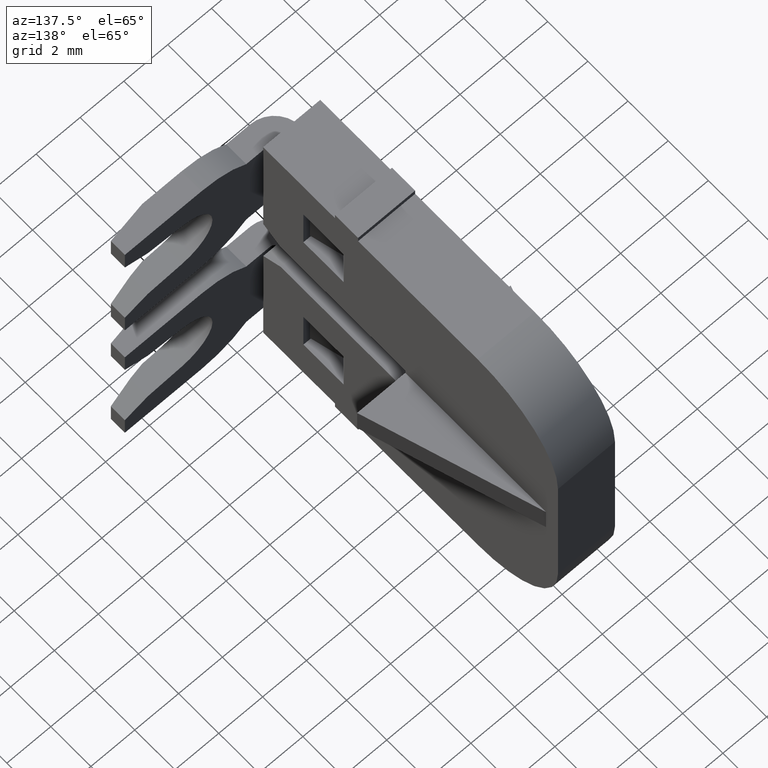
[diagram: clean part render]
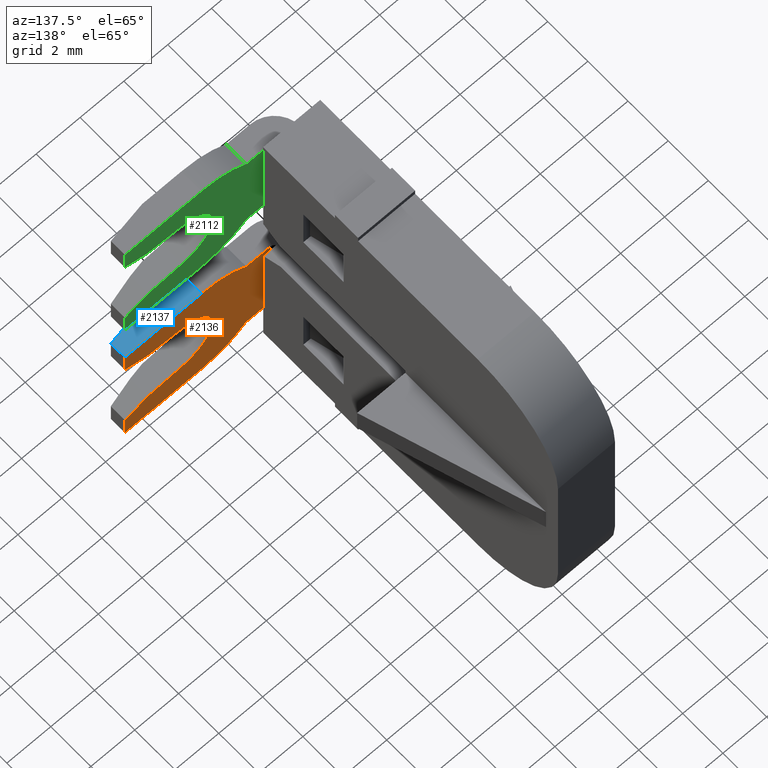
[diagram: same view with three faces highlighted in distinct colors, each labeled with its STEP entity id]
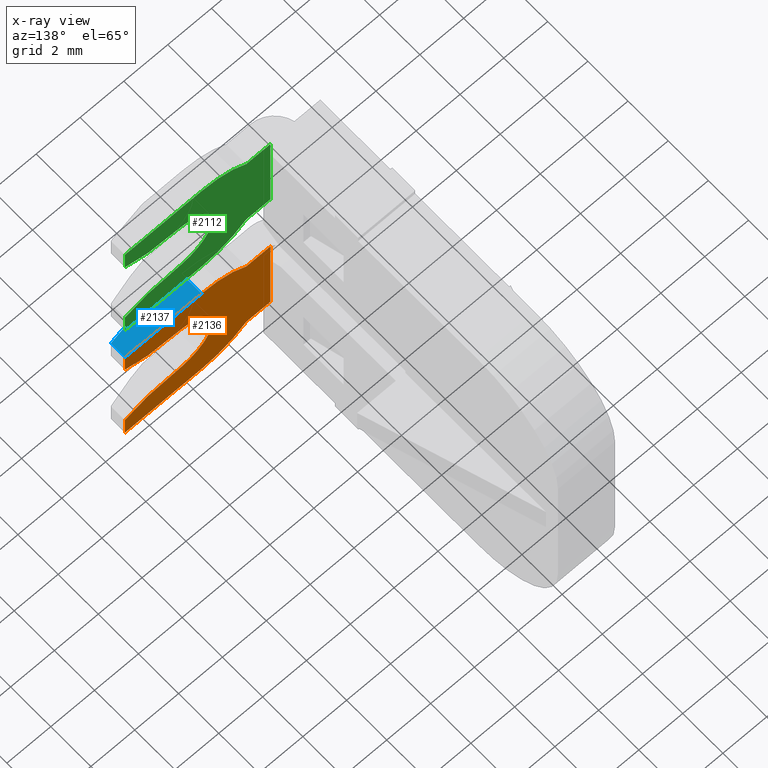
[diagram: x-ray of the same camera — body ghosted, the three highlighted faces saturated]
A machine part, auxiliary view with three faces highlighted in distinct colors.
The next image is the same camera in x-ray (body ghosted, the three faces saturated) — at least one of them is partly hidden behind the body in this view.
Their STEP definitions:

[orange] entity #2136 — the highlighted planar face has unit normal (0, -1, -0).
#222 = CARTESIAN_POINT ( 'NONE',  ( 1477.581277334164000, 1079.959529724810000, -1.099999999999976100 ) ) ;
#227 = CARTESIAN_POINT ( 'NONE',  ( 1474.445209356664000, 1079.959529724810000, -6.299999998087770300 ) ) ;
#237 = CARTESIAN_POINT ( 'NONE',  ( 1481.081277336664000, 1079.959529724810000, -2.100000000000000100 ) ) ;
#245 = CARTESIAN_POINT ( 'NONE',  ( 1481.081277336664000, 1079.959529724810000, -7.100000000000120400 ) ) ;
#256 = CARTESIAN_POINT ( 'NONE',  ( 1474.445209356664000, 1079.959529724810000, -1.899999998087710000 ) ) ;
#257 = CARTESIAN_POINT ( 'NONE',  ( 1478.465335063176100, 1079.959529724810000, -5.595434553790839900 ) ) ;
#261 = CARTESIAN_POINT ( 'NONE',  ( 1480.031484648070100, 1079.959529724810000, -5.717906709201569600 ) ) ;
#264 = CARTESIAN_POINT ( 'NONE',  ( 1475.541669526664000, 1079.959529724810000, -6.299999998087770300 ) ) ;
#268 = CARTESIAN_POINT ( 'NONE',  ( 1481.081277336664000, 1079.959529724810000, -6.100000000000120400 ) ) ;
#301 = CARTESIAN_POINT ( 'NONE',  ( 1480.031484648070100, 1079.959529724810000, -2.482093290798445200 ) ) ;
#306 = CARTESIAN_POINT ( 'NONE',  ( 1481.081277336664000, 1079.959529724810000, -1.100000000000000100 ) ) ;
#322 = CARTESIAN_POINT ( 'NONE',  ( 1475.541669528726100, 1079.959529724810000, -1.900000000000025000 ) ) ;
#323 = CARTESIAN_POINT ( 'NONE',  ( 1477.581277334164000, 1079.959529724810000, -7.100000000000090200 ) ) ;
#324 = CARTESIAN_POINT ( 'NONE',  ( 1478.465335063176100, 1079.959529724810000, -2.604565446209139900 ) ) ;
#424 = VECTOR ( 'NONE', #1458, 1000.000000000000000 ) ;
#443 = VECTOR ( 'NONE', #1485, 1000.000000000000100 ) ;
#459 = VECTOR ( 'NONE', #1405, 1000.000000000000000 ) ;
#464 = CIRCLE ( 'NONE', #474, 3.000000000000000000 ) ;
#474 = AXIS2_PLACEMENT_3D ( 'NONE', #1460, #1488, #1465 ) ;
#479 = VECTOR ( 'NONE', #1487, 1000.000000000000100 ) ;
#490 = VECTOR ( 'NONE', #1587, 1000.000000000000000 ) ;
#494 = AXIS2_PLACEMENT_3D ( 'NONE', #1491, #1525, #1526 ) ;
#509 = AXIS2_PLACEMENT_3D ( 'NONE', #1542, #1557, #1530 ) ;
#517 = CIRCLE ( 'NONE', #494, 3.000000000000000000 ) ;
#524 = CIRCLE ( 'NONE', #509, 1.500000000000000000 ) ;
#528 = VECTOR ( 'NONE', #1584, 1000.000000000000000 ) ;
#533 = VECTOR ( 'NONE', #1627, 1000.000000000000000 ) ;
#542 = VECTOR ( 'NONE', #1700, 1000.000000000000100 ) ;
#558 = VECTOR ( 'NONE', #1688, 1000.000000000000000 ) ;
#591 = VECTOR ( 'NONE', #1741, 1000.000000000000000 ) ;
#602 = VECTOR ( 'NONE', #1729, 1000.000000000000000 ) ;
#690 = AXIS2_PLACEMENT_3D ( 'NONE', #1052, #1072, #1058 ) ;
#1052 = CARTESIAN_POINT ( 'NONE',  ( 1474.245209356664000, 1079.959529724810000, -1.899999998087710000 ) ) ;
#1055 = PLANE ( 'NONE',  #690 ) ;
#1058 = DIRECTION ( 'NONE',  ( -3.003463711734375200E-015, 1.611929227616649900E-016, -1.000000000000000000 ) ) ;
#1072 = DIRECTION ( 'NONE',  ( 5.551115123125738900E-017, -1.000000000000000000, -1.611929227616651700E-016 ) ) ;
#1089 = FACE_OUTER_BOUND ( 'NONE', #2730, .T. ) ;
#1405 = DIRECTION ( 'NONE',  ( -1.000000000000000000, -2.775557561562949900E-017, 6.502744763859970100E-015 ) ) ;
#1407 = LINE ( 'NONE', #1445, #479 ) ;
#1412 = LINE ( 'NONE', #1446, #443 ) ;
#1425 = CARTESIAN_POINT ( 'NONE',  ( 1474.245209356664000, 1079.959529724810000, -6.299999998087770300 ) ) ;
#1435 = LINE ( 'NONE', #1425, #459 ) ;
#1445 = CARTESIAN_POINT ( 'NONE',  ( 1481.081277336664000, 1079.959529724810000, -5.800000000000110000 ) ) ;
#1446 = CARTESIAN_POINT ( 'NONE',  ( 1481.081277336664000, 1079.959529724810000, -2.399999999999999900 ) ) ;
#1456 = LINE ( 'NONE', #1457, #424 ) ;
#1457 = CARTESIAN_POINT ( 'NONE',  ( 1477.581277334164000, 1079.959529724810000, -7.100000000000090200 ) ) ;
#1458 = DIRECTION ( 'NONE',  ( 1.000000000000000000, 2.775557561562874700E-017, -2.042027254913429900E-015 ) ) ;
#1460 = CARTESIAN_POINT ( 'NONE',  ( 1477.581277334164000, 1079.959529724810000, -4.100000000000000500 ) ) ;
#1465 = DIRECTION ( 'NONE',  ( 0.0000000000000000000, 0.0000000000000000000, 1.000000000000000000 ) ) ;
#1485 = DIRECTION ( 'NONE',  ( 0.9969563691939027400, 1.510425331878288300E-017, 0.07796151565811471100 ) ) ;
#1487 = DIRECTION ( 'NONE',  ( -0.9969563691939025100, -4.023794246250532000E-017, 0.07796151565811894300 ) ) ;
#1488 = DIRECTION ( 'NONE',  ( 5.551115123125689600E-017, -1.000000000000000000, -2.891205793293835200E-016 ) ) ;
#1491 = CARTESIAN_POINT ( 'NONE',  ( 1477.581277334164000, 1079.959529724810000, -4.100000000000000500 ) ) ;
#1525 = DIRECTION ( 'NONE',  ( 5.551115123125689600E-017, -1.000000000000000000, -2.891205793293830300E-016 ) ) ;
#1526 = DIRECTION ( 'NONE',  ( 0.0000000000000000000, 0.0000000000000000000, 1.000000000000000000 ) ) ;
#1530 = DIRECTION ( 'NONE',  ( 0.0000000000000000000, 0.0000000000000000000, 1.000000000000000000 ) ) ;
#1542 = CARTESIAN_POINT ( 'NONE',  ( 1478.582277336664000, 1079.959529724810000, -4.100000000000000500 ) ) ;
#1557 = DIRECTION ( 'NONE',  ( -5.551115123125779600E-017, 1.000000000000000000, -8.480695841261440800E-029 ) ) ;
#1561 = LINE ( 'NONE', #1568, #490 ) ;
#1568 = CARTESIAN_POINT ( 'NONE',  ( 1475.245209356664000, 1079.959529724810000, -1.899999998087670100 ) ) ;
#1584 = DIRECTION ( 'NONE',  ( 2.996938929019320400E-015, -1.611929227616649900E-016, 1.000000000000000000 ) ) ;
#1587 = DIRECTION ( 'NONE',  ( 1.000000000000000000, 2.775557561562935100E-017, -5.635383025871561100E-015 ) ) ;
#1594 = CARTESIAN_POINT ( 'NONE',  ( 1481.081277336664000, 1079.959529724810000, -1.100000000000000100 ) ) ;
#1604 = LINE ( 'NONE', #1626, #528 ) ;
#1625 = LINE ( 'NONE', #1594, #533 ) ;
#1626 = CARTESIAN_POINT ( 'NONE',  ( 1474.445209356664000, 1079.959529724810000, -6.299999998087770300 ) ) ;
#1627 = DIRECTION ( 'NONE',  ( -1.000000000000000000, -2.775557561562889800E-017, 2.785480172658120500E-015 ) ) ;
#1684 = LINE ( 'NONE', #1705, #558 ) ;
#1687 = LINE ( 'NONE', #1694, #542 ) ;
#1688 = DIRECTION ( 'NONE',  ( 2.996938929019315300E-015, -1.611929227616649900E-016, 1.000000000000000000 ) ) ;
#1694 = CARTESIAN_POINT ( 'NONE',  ( 1480.031484648070100, 1079.959529724810000, -2.482093290798445200 ) ) ;
#1700 = DIRECTION ( 'NONE',  ( 0.9396926207859093200, -2.904951695435646100E-017, 0.3420201433256661000 ) ) ;
#1705 = CARTESIAN_POINT ( 'NONE',  ( 1481.081277336664000, 1079.959529724810000, -7.100000000000120400 ) ) ;
#1719 = CARTESIAN_POINT ( 'NONE',  ( 1481.081277336664000, 1079.959529724810000, -2.399999999999999900 ) ) ;
#1729 = DIRECTION ( 'NONE',  ( 2.996938929019315300E-015, -1.611929227616649900E-016, 1.000000000000000000 ) ) ;
#1730 = LINE ( 'NONE', #1719, #602 ) ;
#1740 = CARTESIAN_POINT ( 'NONE',  ( 1481.081277336664000, 1079.959529724810000, -6.100000000000120400 ) ) ;
#1741 = DIRECTION ( 'NONE',  ( -0.9396926207859069800, -8.121293613769998600E-017, 0.3420201433256724900 ) ) ;
#1745 = LINE ( 'NONE', #1740, #591 ) ;
#1932 = EDGE_CURVE ( 'NONE', #2884, #2865, #1435, .T. ) ;
#1936 = EDGE_CURVE ( 'NONE', #2871, #2868, #1407, .T. ) ;
#1938 = EDGE_CURVE ( 'NONE', #2893, #2955, #1412, .T. ) ;
#1943 = EDGE_CURVE ( 'NONE', #2882, #2908, #464, .T. ) ;
#1947 = EDGE_CURVE ( 'NONE', #2912, #2856, #1456, .T. ) ;
#1957 = EDGE_CURVE ( 'NONE', #2884, #2912, #517, .T. ) ;
#1966 = EDGE_CURVE ( 'NONE', #2868, #2893, #524, .T. ) ;
#1983 = EDGE_CURVE ( 'NONE', #2863, #2908, #1561, .T. ) ;
#1986 = EDGE_CURVE ( 'NONE', #2865, #2863, #1604, .T. ) ;
#1994 = EDGE_CURVE ( 'NONE', #2968, #2882, #1625, .T. ) ;
#2024 = EDGE_CURVE ( 'NONE', #2856, #2883, #1684, .T. ) ;
#2026 = EDGE_CURVE ( 'NONE', #2955, #2891, #1687, .T. ) ;
#2038 = EDGE_CURVE ( 'NONE', #2891, #2968, #1730, .T. ) ;
#2039 = EDGE_CURVE ( 'NONE', #2883, #2871, #1745, .T. ) ;
#2136 = ADVANCED_FACE ( 'NONE', ( #1089 ), #1055, .F. ) ;
#2402 = ORIENTED_EDGE ( 'NONE', *, *, #1957, .F. ) ;
#2403 = ORIENTED_EDGE ( 'NONE', *, *, #2038, .F. ) ;
#2406 = ORIENTED_EDGE ( 'NONE', *, *, #1966, .F. ) ;
#2409 = ORIENTED_EDGE ( 'NONE', *, *, #2039, .F. ) ;
#2411 = ORIENTED_EDGE ( 'NONE', *, *, #1994, .F. ) ;
#2426 = ORIENTED_EDGE ( 'NONE', *, *, #1983, .T. ) ;
#2428 = ORIENTED_EDGE ( 'NONE', *, *, #1936, .F. ) ;
#2429 = ORIENTED_EDGE ( 'NONE', *, *, #1932, .T. ) ;
#2432 = ORIENTED_EDGE ( 'NONE', *, *, #1986, .T. ) ;
#2435 = ORIENTED_EDGE ( 'NONE', *, *, #1943, .F. ) ;
#2437 = ORIENTED_EDGE ( 'NONE', *, *, #2026, .F. ) ;
#2446 = ORIENTED_EDGE ( 'NONE', *, *, #1938, .F. ) ;
#2450 = ORIENTED_EDGE ( 'NONE', *, *, #1947, .F. ) ;
#2456 = ORIENTED_EDGE ( 'NONE', *, *, #2024, .F. ) ;
#2730 = EDGE_LOOP ( 'NONE', ( #2446, #2406, #2428, #2409, #2456, #2450, #2402, #2429, #2432, #2426, #2435, #2411, #2403, #2437 ) ) ;
#2856 = VERTEX_POINT ( 'NONE', #245 ) ;
#2863 = VERTEX_POINT ( 'NONE', #256 ) ;
#2865 = VERTEX_POINT ( 'NONE', #227 ) ;
#2868 = VERTEX_POINT ( 'NONE', #257 ) ;
#2871 = VERTEX_POINT ( 'NONE', #261 ) ;
#2882 = VERTEX_POINT ( 'NONE', #222 ) ;
#2883 = VERTEX_POINT ( 'NONE', #268 ) ;
#2884 = VERTEX_POINT ( 'NONE', #264 ) ;
#2891 = VERTEX_POINT ( 'NONE', #237 ) ;
#2893 = VERTEX_POINT ( 'NONE', #324 ) ;
#2908 = VERTEX_POINT ( 'NONE', #322 ) ;
#2912 = VERTEX_POINT ( 'NONE', #323 ) ;
#2955 = VERTEX_POINT ( 'NONE', #301 ) ;
#2968 = VERTEX_POINT ( 'NONE', #306 ) ;

[blue] entity #2137 — the highlighted planar face has unit normal (0, 0, 1).
#222 = CARTESIAN_POINT ( 'NONE',  ( 1477.581277334164000, 1079.959529724810000, -1.099999999999976100 ) ) ;
#235 = CARTESIAN_POINT ( 'NONE',  ( 1477.581277334164000, 1078.959529724810000, -1.099999999999976100 ) ) ;
#275 = CARTESIAN_POINT ( 'NONE',  ( 1481.081277336664000, 1079.259529724809900, -1.100000000000000100 ) ) ;
#306 = CARTESIAN_POINT ( 'NONE',  ( 1481.081277336664000, 1079.959529724810000, -1.100000000000000100 ) ) ;
#308 = CARTESIAN_POINT ( 'NONE',  ( 1479.379892790780100, 1078.959529724810000, -1.100000000000000100 ) ) ;
#444 = VECTOR ( 'NONE', #1475, 1000.000000000000000 ) ;
#461 = VECTOR ( 'NONE', #1471, 1000.000000000000000 ) ;
#475 = VECTOR ( 'NONE', #1449, 1000.000000000000000 ) ;
#533 = VECTOR ( 'NONE', #1627, 1000.000000000000000 ) ;
#561 = VECTOR ( 'NONE', #1686, 1000.000000000000000 ) ;
#673 = AXIS2_PLACEMENT_3D ( 'NONE', #1054, #1097, #1079 ) ;
#1047 = PLANE ( 'NONE',  #673 ) ;
#1054 = CARTESIAN_POINT ( 'NONE',  ( 1481.081277336664000, 1078.959529724810000, -1.100000000000000100 ) ) ;
#1067 = FACE_OUTER_BOUND ( 'NONE', #2708, .T. ) ;
#1079 = DIRECTION ( 'NONE',  ( 1.611929227617499900E-016, 1.000000000000000000, -8.545782123503740600E-029 ) ) ;
#1097 = DIRECTION ( 'NONE',  ( 2.785480172658120500E-015, 8.500882154471174300E-029, 1.000000000000000000 ) ) ;
#1447 = LINE ( 'NONE', #1481, #461 ) ;
#1448 = LINE ( 'NONE', #1480, #475 ) ;
#1449 = DIRECTION ( 'NONE',  ( -5.551115123125729700E-017, 1.000000000000000000, 1.887053881210179800E-016 ) ) ;
#1471 = DIRECTION ( 'NONE',  ( -1.000000000000000000, -2.775557561562889800E-017, 2.785480172658120500E-015 ) ) ;
#1475 = DIRECTION ( 'NONE',  ( -0.9848077530122082400, -0.1736481776669295300, 2.743162469895515900E-015 ) ) ;
#1477 = LINE ( 'NONE', #1479, #444 ) ;
#1479 = CARTESIAN_POINT ( 'NONE',  ( 1481.029974315165900, 1079.250483617930100, -1.100000000000000100 ) ) ;
#1480 = CARTESIAN_POINT ( 'NONE',  ( 1477.581277334164000, 1078.959529724810000, -1.099999999999976100 ) ) ;
#1481 = CARTESIAN_POINT ( 'NONE',  ( 1481.081277336664000, 1078.959529724810000, -1.100000000000000100 ) ) ;
#1594 = CARTESIAN_POINT ( 'NONE',  ( 1481.081277336664000, 1079.959529724810000, -1.100000000000000100 ) ) ;
#1625 = LINE ( 'NONE', #1594, #533 ) ;
#1627 = DIRECTION ( 'NONE',  ( -1.000000000000000000, -2.775557561562889800E-017, 2.785480172658120500E-015 ) ) ;
#1683 = CARTESIAN_POINT ( 'NONE',  ( 1481.081277336664000, 1078.959529724810000, -1.100000000000000100 ) ) ;
#1686 = DIRECTION ( 'NONE',  ( -5.551115123125729700E-017, 1.000000000000000000, 1.887053881210179800E-016 ) ) ;
#1689 = LINE ( 'NONE', #1683, #561 ) ;
#1939 = EDGE_CURVE ( 'NONE', #2905, #2922, #1477, .T. ) ;
#1940 = EDGE_CURVE ( 'NONE', #2922, #2890, #1447, .T. ) ;
#1944 = EDGE_CURVE ( 'NONE', #2890, #2882, #1448, .T. ) ;
#1994 = EDGE_CURVE ( 'NONE', #2968, #2882, #1625, .T. ) ;
#2023 = EDGE_CURVE ( 'NONE', #2905, #2968, #1689, .T. ) ;
#2137 = ADVANCED_FACE ( 'NONE', ( #1067 ), #1047, .T. ) ;
#2335 = ORIENTED_EDGE ( 'NONE', *, *, #1940, .F. ) ;
#2339 = ORIENTED_EDGE ( 'NONE', *, *, #2023, .T. ) ;
#2368 = ORIENTED_EDGE ( 'NONE', *, *, #1944, .F. ) ;
#2373 = ORIENTED_EDGE ( 'NONE', *, *, #1939, .F. ) ;
#2382 = ORIENTED_EDGE ( 'NONE', *, *, #1994, .T. ) ;
#2708 = EDGE_LOOP ( 'NONE', ( #2373, #2339, #2382, #2368, #2335 ) ) ;
#2882 = VERTEX_POINT ( 'NONE', #222 ) ;
#2890 = VERTEX_POINT ( 'NONE', #235 ) ;
#2905 = VERTEX_POINT ( 'NONE', #275 ) ;
#2922 = VERTEX_POINT ( 'NONE', #308 ) ;
#2968 = VERTEX_POINT ( 'NONE', #306 ) ;

[green] entity #2112 — the highlighted planar face has unit normal (0, -1, 0).
#255 = CARTESIAN_POINT ( 'NONE',  ( 1481.081277336664000, 1079.959529724810000, 1.049999999999945900 ) ) ;
#265 = CARTESIAN_POINT ( 'NONE',  ( 1478.465335063177900, 1079.959529724810000, 2.554565446209100100 ) ) ;
#273 = CARTESIAN_POINT ( 'NONE',  ( 1475.541669526664000, 1079.959529724810000, 6.249999998087740300 ) ) ;
#279 = CARTESIAN_POINT ( 'NONE',  ( 1478.465335063177900, 1079.959529724810000, 5.545434553790800100 ) ) ;
#284 = CARTESIAN_POINT ( 'NONE',  ( 1481.081277336664000, 1079.959529724810000, 7.049999999999999800 ) ) ;
#290 = CARTESIAN_POINT ( 'NONE',  ( 1480.031484648070100, 1079.959529724810000, 5.667906709201499600 ) ) ;
#293 = CARTESIAN_POINT ( 'NONE',  ( 1477.581277334164000, 1079.959529724810000, 1.049999999999945900 ) ) ;
#297 = CARTESIAN_POINT ( 'NONE',  ( 1475.541669528726100, 1079.959529724810000, 1.850000000000000100 ) ) ;
#302 = CARTESIAN_POINT ( 'NONE',  ( 1474.445209356664000, 1079.959529724810000, 6.249999998087740300 ) ) ;
#304 = CARTESIAN_POINT ( 'NONE',  ( 1474.445209356664000, 1079.959529724810000, 1.849999998087695100 ) ) ;
#307 = CARTESIAN_POINT ( 'NONE',  ( 1477.581277334164000, 1079.959529724810000, 7.049999999999999800 ) ) ;
#309 = CARTESIAN_POINT ( 'NONE',  ( 1480.031484648070100, 1079.959529724810000, 2.432093290798395200 ) ) ;
#312 = CARTESIAN_POINT ( 'NONE',  ( 1481.081277336664000, 1079.959529724810000, 2.049999999999940300 ) ) ;
#329 = CARTESIAN_POINT ( 'NONE',  ( 1481.081277336664000, 1079.959529724810000, 6.049999999999999800 ) ) ;
#531 = VECTOR ( 'NONE', #1663, 1000.000000000000000 ) ;
#543 = AXIS2_PLACEMENT_3D ( 'NONE', #1704, #1674, #1718 ) ;
#548 = CIRCLE ( 'NONE', #543, 3.000000000000000000 ) ;
#556 = VECTOR ( 'NONE', #1712, 1000.000000000000000 ) ;
#562 = VECTOR ( 'NONE', #1692, 1000.000000000000000 ) ;
#571 = VECTOR ( 'NONE', #1629, 1000.000000000000000 ) ;
#575 = VECTOR ( 'NONE', #1701, 1000.000000000000100 ) ;
#578 = VECTOR ( 'NONE', #1665, 1000.000000000000000 ) ;
#583 = CIRCLE ( 'NONE', #584, 1.500000000000000000 ) ;
#584 = AXIS2_PLACEMENT_3D ( 'NONE', #1758, #1728, #1750 ) ;
#588 = VECTOR ( 'NONE', #1666, 999.9999999999998900 ) ;
#599 = VECTOR ( 'NONE', #1773, 1000.000000000000000 ) ;
#601 = VECTOR ( 'NONE', #1792, 1000.000000000000100 ) ;
#611 = VECTOR ( 'NONE', #1840, 1000.000000000000000 ) ;
#614 = CIRCLE ( 'NONE', #615, 3.000000000000000000 ) ;
#615 = AXIS2_PLACEMENT_3D ( 'NONE', #1854, #1830, #1828 ) ;
#617 = VECTOR ( 'NONE', #1855, 1000.000000000000000 ) ;
#644 = AXIS2_PLACEMENT_3D ( 'NONE', #908, #906, #930 ) ;
#901 = FACE_OUTER_BOUND ( 'NONE', #2750, .T. ) ;
#906 = DIRECTION ( 'NONE',  ( 5.551115123125839400E-017, -1.000000000000000000, 1.611929227617498000E-016 ) ) ;
#908 = CARTESIAN_POINT ( 'NONE',  ( 1474.245209356664000, 1079.959529724810000, 1.849999998087695100 ) ) ;
#918 = PLANE ( 'NONE',  #644 ) ;
#930 = DIRECTION ( 'NONE',  ( 3.497202527569245500E-015, 1.611929227617499900E-016, 1.000000000000000000 ) ) ;
#1582 = LINE ( 'NONE', #1656, #578 ) ;
#1591 = LINE ( 'NONE', #1592, #531 ) ;
#1592 = CARTESIAN_POINT ( 'NONE',  ( 1481.081277336664000, 1079.959529724810000, 6.049999999999999800 ) ) ;
#1593 = LINE ( 'NONE', #1639, #571 ) ;
#1629 = DIRECTION ( 'NONE',  ( -3.503727310284305400E-015, -1.611929227617499900E-016, -1.000000000000000000 ) ) ;
#1631 = CARTESIAN_POINT ( 'NONE',  ( 1481.081277336664000, 1079.959529724810000, 2.349999999999945000 ) ) ;
#1635 = LINE ( 'NONE', #1660, #575 ) ;
#1639 = CARTESIAN_POINT ( 'NONE',  ( 1481.081277336664000, 1079.959529724810000, 2.349999999999945000 ) ) ;
#1656 = CARTESIAN_POINT ( 'NONE',  ( 1474.445209356664000, 1079.959529724810000, 6.249999998087740300 ) ) ;
#1660 = CARTESIAN_POINT ( 'NONE',  ( 1481.081277336664000, 1079.959529724810000, 5.750000000000000000 ) ) ;
#1663 = DIRECTION ( 'NONE',  ( -0.9396926207859092100, -8.121293613772910000E-017, -0.3420201433256665500 ) ) ;
#1664 = LINE ( 'NONE', #1631, #588 ) ;
#1665 = DIRECTION ( 'NONE',  ( -3.503727310284300300E-015, -1.611929227617499900E-016, -1.000000000000000000 ) ) ;
#1666 = DIRECTION ( 'NONE',  ( 0.9969563691939024000, 1.510425331877623900E-017, -0.07796151565812124700 ) ) ;
#1674 = DIRECTION ( 'NONE',  ( -5.551115123125880100E-017, 1.000000000000000000, -2.891205793294675400E-016 ) ) ;
#1676 = LINE ( 'NONE', #1716, #562 ) ;
#1692 = DIRECTION ( 'NONE',  ( 1.000000000000000000, 2.775557561562935100E-017, -8.652832134320580400E-016 ) ) ;
#1693 = LINE ( 'NONE', #1711, #556 ) ;
#1701 = DIRECTION ( 'NONE',  ( -0.9969563691939030700, -4.023794246251189600E-017, -0.07796151565811240700 ) ) ;
#1704 = CARTESIAN_POINT ( 'NONE',  ( 1477.581277334164000, 1079.959529724810000, 4.049999999999999800 ) ) ;
#1711 = CARTESIAN_POINT ( 'NONE',  ( 1481.081277336664000, 1079.959529724810000, 7.049999999999999800 ) ) ;
#1712 = DIRECTION ( 'NONE',  ( -3.503727310284305400E-015, -1.611929227617499900E-016, -1.000000000000000000 ) ) ;
#1716 = CARTESIAN_POINT ( 'NONE',  ( 1475.245209356664000, 1079.959529724810000, 1.849999998087645100 ) ) ;
#1718 = DIRECTION ( 'NONE',  ( 0.0000000000000000000, 0.0000000000000000000, -1.000000000000000000 ) ) ;
#1728 = DIRECTION ( 'NONE',  ( 5.551115123125779600E-017, -1.000000000000000000, -1.941337383942334800E-031 ) ) ;
#1750 = DIRECTION ( 'NONE',  ( 0.0000000000000000000, 0.0000000000000000000, -1.000000000000000000 ) ) ;
#1758 = CARTESIAN_POINT ( 'NONE',  ( 1478.582277336664000, 1079.959529724810000, 4.049999999999999800 ) ) ;
#1773 = DIRECTION ( 'NONE',  ( 1.000000000000000000, 2.775557561562874700E-017, -4.458638984390190400E-015 ) ) ;
#1775 = LINE ( 'NONE', #1793, #617 ) ;
#1780 = LINE ( 'NONE', #1782, #599 ) ;
#1782 = CARTESIAN_POINT ( 'NONE',  ( 1477.581277334164000, 1079.959529724810000, 7.049999999999999800 ) ) ;
#1791 = LINE ( 'NONE', #1803, #601 ) ;
#1792 = DIRECTION ( 'NONE',  ( 0.9396926207859071000, -2.904951695438550100E-017, -0.3420201433256719900 ) ) ;
#1793 = CARTESIAN_POINT ( 'NONE',  ( 1481.081277336664000, 1079.959529724810000, 1.049999999999945900 ) ) ;
#1803 = CARTESIAN_POINT ( 'NONE',  ( 1480.031484648070100, 1079.959529724810000, 2.432093290798395200 ) ) ;
#1824 = CARTESIAN_POINT ( 'NONE',  ( 1474.245209356664000, 1079.959529724810000, 6.249999998087740300 ) ) ;
#1828 = DIRECTION ( 'NONE',  ( 0.0000000000000000000, 0.0000000000000000000, -1.000000000000000000 ) ) ;
#1830 = DIRECTION ( 'NONE',  ( -5.551115123125880100E-017, 1.000000000000000000, -2.891205793294680300E-016 ) ) ;
#1840 = DIRECTION ( 'NONE',  ( -1.000000000000000000, -2.775557561562949900E-017, -2.078524556347875100E-018 ) ) ;
#1845 = LINE ( 'NONE', #1824, #611 ) ;
#1854 = CARTESIAN_POINT ( 'NONE',  ( 1477.581277334164000, 1079.959529724810000, 4.049999999999999800 ) ) ;
#1855 = DIRECTION ( 'NONE',  ( -1.000000000000000000, -2.775557561562889800E-017, 3.715186066645500200E-015 ) ) ;
#1996 = EDGE_CURVE ( 'NONE', #2959, #2964, #1591, .T. ) ;
#1997 = EDGE_CURVE ( 'NONE', #2940, #2919, #1582, .T. ) ;
#1998 = EDGE_CURVE ( 'NONE', #2938, #2855, #1593, .T. ) ;
#2001 = EDGE_CURVE ( 'NONE', #2867, #2921, #1664, .T. ) ;
#2015 = EDGE_CURVE ( 'NONE', #2964, #2931, #1635, .T. ) ;
#2016 = EDGE_CURVE ( 'NONE', #2960, #2959, #1693, .T. ) ;
#2021 = EDGE_CURVE ( 'NONE', #2925, #2923, #548, .T. ) ;
#2025 = EDGE_CURVE ( 'NONE', #2919, #2936, #1676, .T. ) ;
#2034 = EDGE_CURVE ( 'NONE', #2931, #2867, #583, .T. ) ;
#2048 = EDGE_CURVE ( 'NONE', #2923, #2960, #1780, .T. ) ;
#2053 = EDGE_CURVE ( 'NONE', #2921, #2938, #1791, .T. ) ;
#2060 = EDGE_CURVE ( 'NONE', #2957, #2936, #614, .T. ) ;
#2061 = EDGE_CURVE ( 'NONE', #2855, #2957, #1775, .T. ) ;
#2062 = EDGE_CURVE ( 'NONE', #2925, #2940, #1845, .T. ) ;
#2112 = ADVANCED_FACE ( 'NONE', ( #901 ), #918, .F. ) ;
#2479 = ORIENTED_EDGE ( 'NONE', *, *, #1998, .T. ) ;
#2524 = ORIENTED_EDGE ( 'NONE', *, *, #2021, .T. ) ;
#2534 = ORIENTED_EDGE ( 'NONE', *, *, #2062, .F. ) ;
#2537 = ORIENTED_EDGE ( 'NONE', *, *, #2060, .T. ) ;
#2541 = ORIENTED_EDGE ( 'NONE', *, *, #2048, .T. ) ;
#2549 = ORIENTED_EDGE ( 'NONE', *, *, #2001, .T. ) ;
#2551 = ORIENTED_EDGE ( 'NONE', *, *, #1996, .T. ) ;
#2552 = ORIENTED_EDGE ( 'NONE', *, *, #2016, .T. ) ;
#2562 = ORIENTED_EDGE ( 'NONE', *, *, #1997, .F. ) ;
#2567 = ORIENTED_EDGE ( 'NONE', *, *, #2053, .T. ) ;
#2572 = ORIENTED_EDGE ( 'NONE', *, *, #2015, .T. ) ;
#2574 = ORIENTED_EDGE ( 'NONE', *, *, #2034, .T. ) ;
#2576 = ORIENTED_EDGE ( 'NONE', *, *, #2061, .T. ) ;
#2582 = ORIENTED_EDGE ( 'NONE', *, *, #2025, .F. ) ;
#2750 = EDGE_LOOP ( 'NONE', ( #2549, #2567, #2479, #2576, #2537, #2582, #2562, #2534, #2524, #2541, #2552, #2551, #2572, #2574 ) ) ;
#2855 = VERTEX_POINT ( 'NONE', #255 ) ;
#2867 = VERTEX_POINT ( 'NONE', #265 ) ;
#2919 = VERTEX_POINT ( 'NONE', #304 ) ;
#2921 = VERTEX_POINT ( 'NONE', #309 ) ;
#2923 = VERTEX_POINT ( 'NONE', #307 ) ;
#2925 = VERTEX_POINT ( 'NONE', #273 ) ;
#2931 = VERTEX_POINT ( 'NONE', #279 ) ;
#2936 = VERTEX_POINT ( 'NONE', #297 ) ;
#2938 = VERTEX_POINT ( 'NONE', #312 ) ;
#2940 = VERTEX_POINT ( 'NONE', #302 ) ;
#2957 = VERTEX_POINT ( 'NONE', #293 ) ;
#2959 = VERTEX_POINT ( 'NONE', #329 ) ;
#2960 = VERTEX_POINT ( 'NONE', #284 ) ;
#2964 = VERTEX_POINT ( 'NONE', #290 ) ;